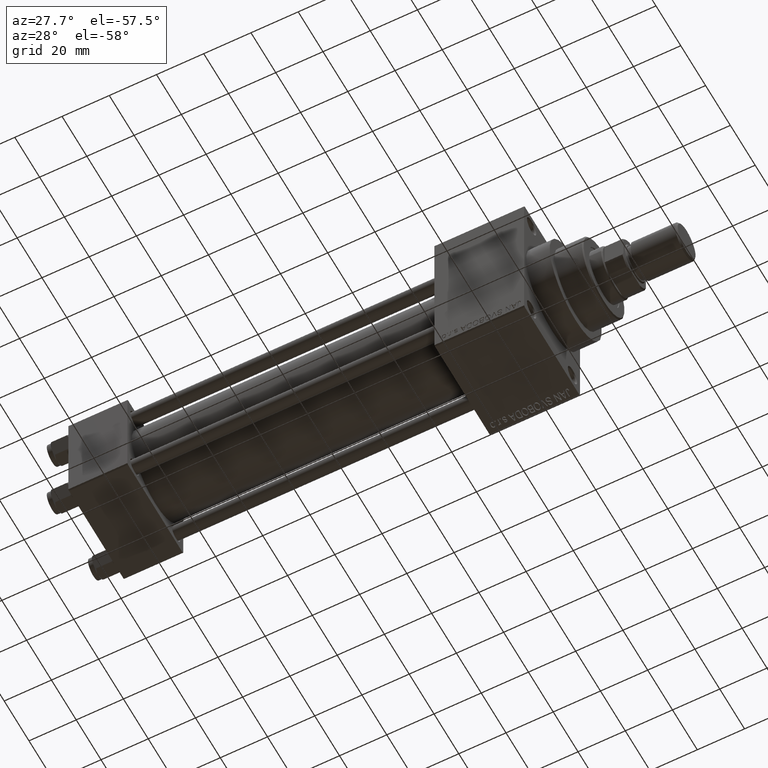
[diagram: clean part render]
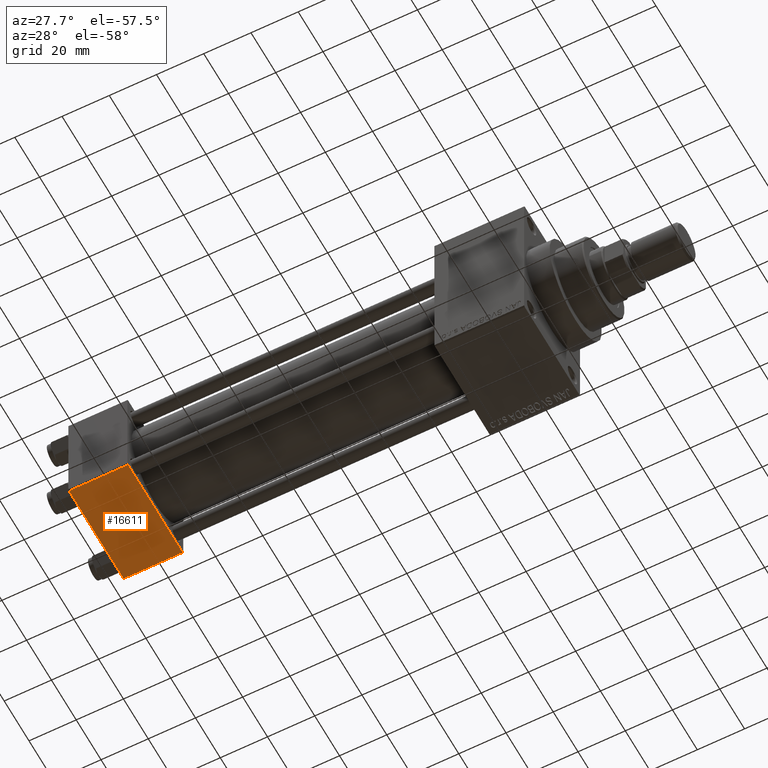
[diagram: same view with one face highlighted and labeled with its STEP entity id]
A machine part, auxiliary view. The second image highlights one B-rep face of the part: STEP entity #16611.
In plain terms, the highlighted planar face has unit normal (0, 0, -1).
Its self-contained STEP definition (entity closure, byte-faithful):
#1560 = LINE ( 'NONE', #28084, #16049 ) ;
#2429 = VERTEX_POINT ( 'NONE', #33871 ) ;
#2801 = CARTESIAN_POINT ( 'NONE',  ( 0.000000000000000000, -21.99999999999997158, -22.50000000000000711 ) ) ;
#6465 = AXIS2_PLACEMENT_3D ( 'NONE', #18108, #8365, #22993 ) ;
#7991 = DIRECTION ( 'NONE',  ( 1.000000000000000000, 0.000000000000000000, 0.000000000000000000 ) ) ;
#8365 = DIRECTION ( 'NONE',  ( 0.000000000000000000, 2.312964634635742957E-16, -1.000000000000000000 ) ) ;
#9795 = VECTOR ( 'NONE', #16977, 1000.000000000000000 ) ;
#16049 = VECTOR ( 'NONE', #39235, 1000.000000000000000 ) ;
#16230 = EDGE_CURVE ( 'NONE', #43909, #20046, #22864, .T. ) ;
#16611 = ADVANCED_FACE ( 'NONE', ( #36942 ), #48362, .T. ) ;
#16686 = EDGE_CURVE ( 'NONE', #43909, #48638, #30670, .T. ) ;
#16977 = DIRECTION ( 'NONE',  ( -1.000000000000000000, 0.000000000000000000, 0.000000000000000000 ) ) ;
#18108 = CARTESIAN_POINT ( 'NONE',  ( 25.00000000000000000, 22.50000000000000000, -22.49999999999999645 ) ) ;
#19182 = EDGE_CURVE ( 'NONE', #20046, #2429, #1560, .T. ) ;
#20046 = VERTEX_POINT ( 'NONE', #25896 ) ;
#20963 = EDGE_CURVE ( 'NONE', #2429, #48638, #46977, .T. ) ;
#22864 = LINE ( 'NONE', #40976, #26246 ) ;
#22993 = DIRECTION ( 'NONE',  ( 0.000000000000000000, 1.000000000000000000, 2.312964634635742957E-16 ) ) ;
#23673 = ORIENTED_EDGE ( 'NONE', *, *, #20963, .T. ) ;
#25896 = CARTESIAN_POINT ( 'NONE',  ( 25.00000000000000000, 21.99999999999999289, -22.49999999999999645 ) ) ;
#26246 = VECTOR ( 'NONE', #7991, 1000.000000000000000 ) ;
#28084 = CARTESIAN_POINT ( 'NONE',  ( 25.00000000000000000, 22.50000000000000000, -22.49999999999999645 ) ) ;
#30670 = LINE ( 'NONE', #42082, #42911 ) ;
#31841 = CARTESIAN_POINT ( 'NONE',  ( 0.000000000000000000, -21.99999999999998579, -22.50000000000000711 ) ) ;
#33871 = CARTESIAN_POINT ( 'NONE',  ( 25.00000000000000000, -21.99999999999997158, -22.50000000000000711 ) ) ;
#34879 = DIRECTION ( 'NONE',  ( 0.000000000000000000, -1.000000000000000000, -2.312964634635742957E-16 ) ) ;
#36412 = CARTESIAN_POINT ( 'NONE',  ( 0.000000000000000000, 21.99999999999999289, -22.49999999999999645 ) ) ;
#36942 = FACE_OUTER_BOUND ( 'NONE', #48383, .T. ) ;
#39235 = DIRECTION ( 'NONE',  ( 0.000000000000000000, -1.000000000000000000, -2.312964634635742957E-16 ) ) ;
#40976 = CARTESIAN_POINT ( 'NONE',  ( 25.00000000000000000, 21.99999999999999289, -22.49999999999999645 ) ) ;
#42039 = ORIENTED_EDGE ( 'NONE', *, *, #16686, .F. ) ;
#42082 = CARTESIAN_POINT ( 'NONE',  ( 0.000000000000000000, 22.50000000000000000, -22.49999999999999645 ) ) ;
#42341 = ORIENTED_EDGE ( 'NONE', *, *, #19182, .T. ) ;
#42614 = ORIENTED_EDGE ( 'NONE', *, *, #16230, .T. ) ;
#42911 = VECTOR ( 'NONE', #34879, 1000.000000000000000 ) ;
#43909 = VERTEX_POINT ( 'NONE', #36412 ) ;
#46977 = LINE ( 'NONE', #31841, #9795 ) ;
#48362 = PLANE ( 'NONE',  #6465 ) ;
#48383 = EDGE_LOOP ( 'NONE', ( #42039, #42614, #42341, #23673 ) ) ;
#48638 = VERTEX_POINT ( 'NONE', #2801 ) ;